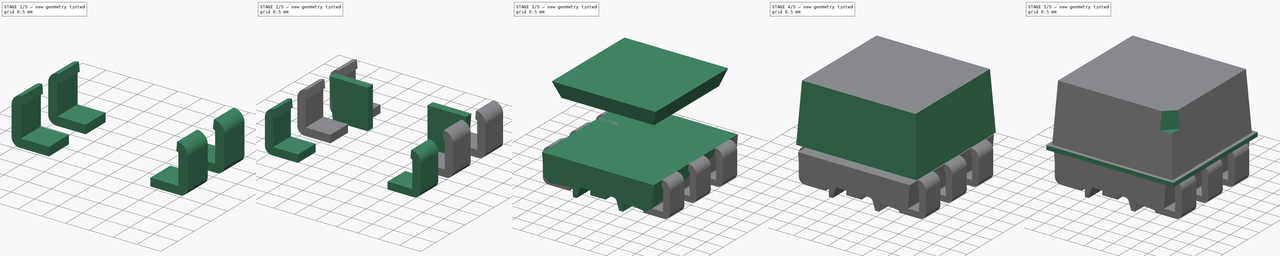
[diagram: build sequence overview — one tinted view per stage of 5, left to right]
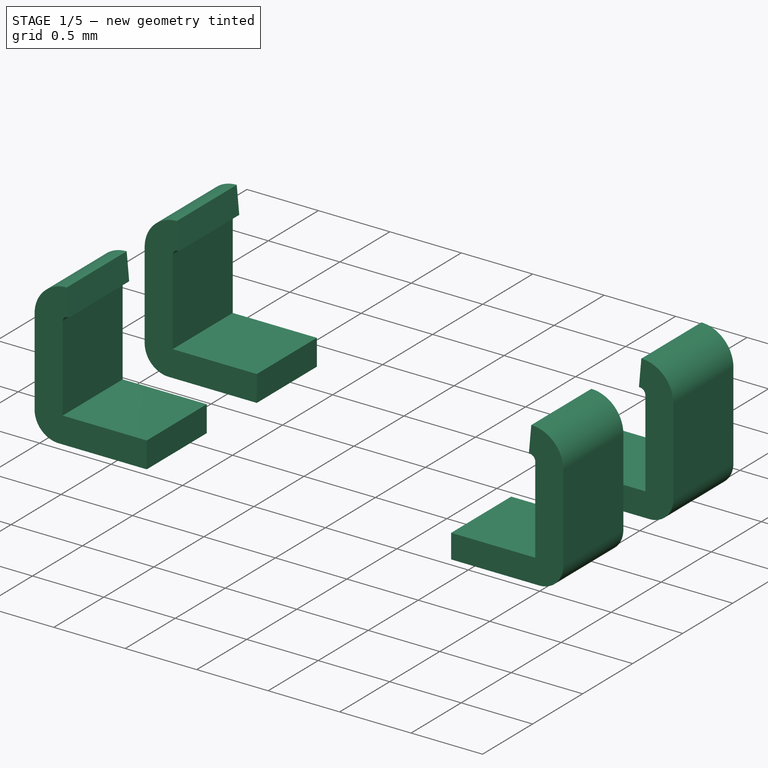
[diagram: stage 1 of 5 — iso view after this stage's code; geometry added in this stage tinted green]
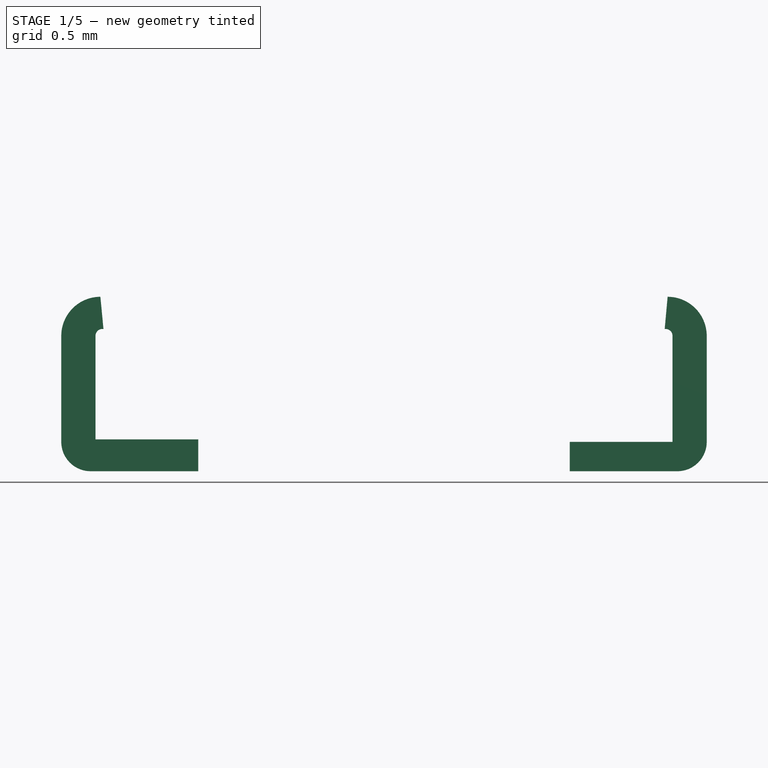
[diagram: stage 1 of 5 — front view after this stage's code; geometry added in this stage tinted green]
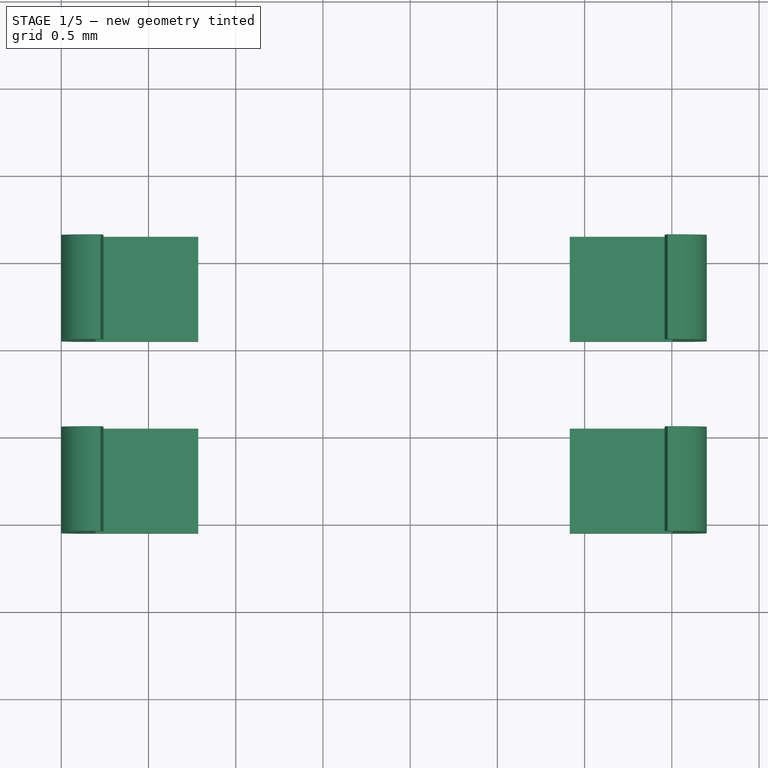
[diagram: stage 1 of 5 — top view after this stage's code; geometry added in this stage tinted green]
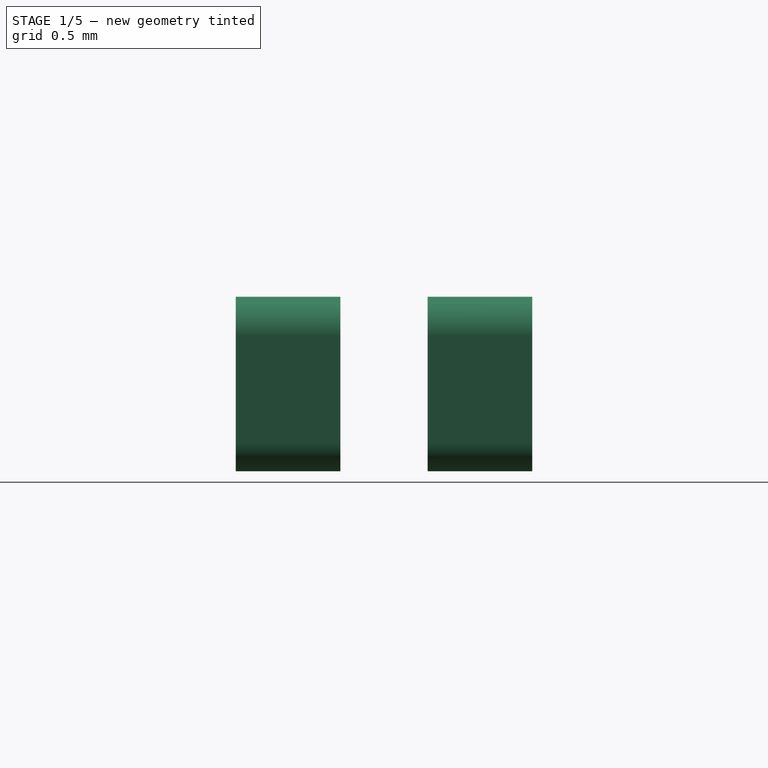
[diagram: stage 1 of 5 — right view after this stage's code; geometry added in this stage tinted green]
FCSTD DOCUMENT  (FreeCAD 0.16R6712 (Git))
Label: LED_RGB3535
License: All rights reserved
LicenseURL: http://en.wikipedia.org/wiki/All_rights_reserved
objects: Sketcher::SketchObject×12, PartDesign::Pad×12, Part::Wedge×3, Part::Cut×2, Part::Fillet×2, Part::Box×1
note: 44 computed .brp shape members not serialized (recipe doc carries the construction recipe); baked Part::Feature solids carry a one-line shape summary decoded from their .brp

FEATURE [Sketcher::SketchObject] Sketch009
  Placement = pos=(0,2.05,0) rot=(1,0,0;1.5708rad)
  sketch-geometry (9):
    g0: LineSegment StartX=0.2242 StartY=1 StartZ=0 EndX=0.241856 EndY=0.815079 EndZ=0
    g1: LineSegment StartX=0.1962 StartY=0.7758 StartZ=0 EndX=0.1962 EndY=0.1826 EndZ=0
    g2: LineSegment StartX=0.1962 StartY=0.1826 StartZ=0 EndX=0.7849 EndY=0.1826 EndZ=0
    g3: LineSegment StartX=0.7849 StartY=0.1826 StartZ=0 EndX=0.7849 EndY=0 EndZ=0
    g4: LineSegment StartX=0.7849 StartY=0 StartZ=0 EndX=0.1682 EndY=0 EndZ=0
    g5: LineSegment StartX=0 StartY=0.1682 StartZ=0 EndX=0 EndY=0.7758 EndZ=0
    g6: ArcOfCircle CenterX=0.2242 CenterY=0.7758 CenterZ=0 NormalX=0 NormalY=0 NormalZ=1 Radius=0.2242 StartAngle=1.5708 EndAngle=3.14159
    g7: ArcOfCircle CenterX=0.1682 CenterY=0.1682 CenterZ=0 NormalX=0 NormalY=0 NormalZ=1 Radius=0.1682 StartAngle=3.14159 EndAngle=4.71239
    g8: ArcOfCircle CenterX=0.235924 CenterY=0.7758 CenterZ=0 NormalX=0 NormalY=0 NormalZ=1 Radius=0.0397244 StartAngle=1.42092 EndAngle=3.14159
  constraints (30):
    c: Coincident(g5,g7)
    c: Coincident(g4,g7)
    c: DistanceY(g4) = 0
    c: Horizontal(g4)
    c: Horizontal(g2)
    c: Vertical(g3)
    c: Vertical(g1)
    c: Vertical(g5)
    c: DistanceX(g0) = 0.2242
    c: Coincident(g0,g6)
    c: Coincident(g5,g6)
    c: DistanceY(g0) = 1
    c: DistanceX(g5) = 0
    c: DistanceX(g4) = 0.1682
    c: DistanceY(g5) = 0.1682
    c: DistanceY(g7) = 0.1682
    c: DistanceX(g3) = 0.7849
    c: Coincident(g3,g4)
    c: Coincident(g2,g3)
    c: Coincident(g1,g2)
    c: DistanceY(g2) = 0.1826
    c: DistanceX(g1) = 0.1962
    c: DistanceY(g5) = 0.7758
    c: DistanceY(g6) = 0.7758
    c: Coincident(g1,g8)
    c: Coincident(g0,g8)
    c: DistanceY(g1) = 0.7758
    c: DistanceX(g0) = 0.241856
    c: DistanceY(g0) = 0.815079
    c: DistanceY(g8) = 0.7758
FEATURE [PartDesign::Pad] Pad009
  Length = 0.6
  Length2 = 100
  Placement = pos=(0,2.05,0) rot=(1,0,0;1.5708rad)
  Sketch = -> Sketch009
  Type = 0
FEATURE [Sketcher::SketchObject] Sketch010
  Placement = pos=(0,3.15,0) rot=(1,0,0;1.5708rad)
  sketch-geometry (9):
    g0: LineSegment StartX=0.2242 StartY=1 StartZ=0 EndX=0.241856 EndY=0.815079 EndZ=0
    g1: LineSegment StartX=0.1962 StartY=0.7758 StartZ=0 EndX=0.1962 EndY=0.1826 EndZ=0
    g2: LineSegment StartX=0.1962 StartY=0.1826 StartZ=0 EndX=0.7849 EndY=0.1826 EndZ=0
    g3: LineSegment StartX=0.7849 StartY=0.1826 StartZ=0 EndX=0.7849 EndY=0 EndZ=0
    g4: LineSegment StartX=0.7849 StartY=0 StartZ=0 EndX=0.1682 EndY=0 EndZ=0
    g5: LineSegment StartX=0 StartY=0.1682 StartZ=0 EndX=0 EndY=0.7758 EndZ=0
    g6: ArcOfCircle CenterX=0.2242 CenterY=0.7758 CenterZ=0 NormalX=0 NormalY=0 NormalZ=1 Radius=0.2242 StartAngle=1.5708 EndAngle=3.14159
    g7: ArcOfCircle CenterX=0.1682 CenterY=0.1682 CenterZ=0 NormalX=0 NormalY=0 NormalZ=1 Radius=0.1682 StartAngle=3.14159 EndAngle=4.71239
    g8: ArcOfCircle CenterX=0.235924 CenterY=0.7758 CenterZ=0 NormalX=0 NormalY=0 NormalZ=1 Radius=0.0397244 StartAngle=1.42092 EndAngle=3.14159
  constraints (30):
    c: Coincident(g5,g7)
    c: Coincident(g4,g7)
    c: DistanceY(g4) = 0
    c: Horizontal(g4)
    c: Horizontal(g2)
    c: Vertical(g3)
    c: Vertical(g1)
    c: Vertical(g5)
    c: DistanceX(g0) = 0.2242
    c: Coincident(g0,g6)
    c: Coincident(g5,g6)
    c: DistanceY(g0) = 1
    c: DistanceX(g5) = 0
    c: DistanceX(g4) = 0.1682
    c: DistanceY(g5) = 0.1682
    c: DistanceY(g7) = 0.1682
    c: DistanceX(g3) = 0.7849
    c: Coincident(g3,g4)
    c: Coincident(g2,g3)
    c: Coincident(g1,g2)
    c: DistanceY(g2) = 0.1826
    c: DistanceX(g1) = 0.1962
    c: DistanceY(g5) = 0.7758
    c: DistanceY(g6) = 0.7758
    c: Coincident(g1,g8)
    c: Coincident(g0,g8)
    c: DistanceY(g1) = 0.7758
    c: DistanceX(g0) = 0.241856
    c: DistanceY(g0) = 0.815079
    c: DistanceY(g8) = 0.7758
FEATURE [PartDesign::Pad] Pad010
  Length = 0.6
  Length2 = 100
  Placement = pos=(0,3.15,0) rot=(1,0,0;1.5708rad)
  Sketch = -> Sketch010
  Type = 0
FEATURE [Sketcher::SketchObject] Sketch011
  Placement = pos=(0,2.05,0) rot=(1,0,0;1.5708rad)
  sketch-geometry (9):
    g0: LineSegment StartX=2.9151 StartY=0 StartZ=0 EndX=3.5318 EndY=0 EndZ=0
    g1: LineSegment StartX=3.7 StartY=0.1682 StartZ=0 EndX=3.7 EndY=0.7758 EndZ=0
    g2: LineSegment StartX=3.4758 StartY=1 StartZ=0 EndX=3.45899 EndY=0.815079 EndZ=0
    g3: LineSegment StartX=3.5038 StartY=0.7758 StartZ=0 EndX=3.5038 EndY=0.1682 EndZ=0
    g4: LineSegment StartX=3.5038 StartY=0.1682 StartZ=0 EndX=2.9151 EndY=0.1682 EndZ=0
    g5: LineSegment StartX=2.9151 StartY=0.1682 StartZ=0 EndX=2.9151 EndY=0 EndZ=0
    g6: ArcOfCircle CenterX=3.5318 CenterY=0.1682 CenterZ=0 NormalX=0 NormalY=0 NormalZ=1 Radius=0.1682 StartAngle=4.71239 EndAngle=6.28319
    g7: ArcOfCircle CenterX=3.46418 CenterY=0.7758 CenterZ=0 NormalX=0 NormalY=0 NormalZ=1 Radius=0.0396204 StartAngle=0 EndAngle=1.70216
    g8: ArcOfCircle CenterX=3.4758 CenterY=0.7758 CenterZ=0 NormalX=0 NormalY=0 NormalZ=1 Radius=0.2242 StartAngle=0 EndAngle=1.5708
  constraints (30):
    c: Coincident(g4,g5)
    c: Coincident(g0,g5)
    c: Vertical(g5)
    c: Coincident(g3,g4)
    c: Horizontal(g4)
    c: Horizontal(g0)
    c: Vertical(g3)
    c: Vertical(g1)
    c: DistanceX(g1) = 3.7
    c: DistanceY(g4) = 0.1682
    c: DistanceY(g0) = 0
    c: Coincident(g1,g6)
    c: DistanceY(g1) = 0.1682
    c: Coincident(g0,g6)
    c: DistanceX(g0) = 3.5318
    c: DistanceY(g6) = 0.1682
    c: DistanceX(g0) = 2.9151
    c: DistanceX(g3) = 3.5038
    c: Coincident(g3,g7)
    c: DistanceY(g3) = 0.7758
    c: Coincident(g1,g8)
    c: DistanceY(g1) = 0.7758
    c: DistanceX(g2) = 3.4758
    c: DistanceY(g2) = 1
    c: Coincident(g2,g8)
    c: DistanceY(g8) = 0.7758
    c: Coincident(g2,g7)
    c: DistanceY(g7) = 0.7758
    c: DistanceY(g2) = 0.815079
    c: DistanceX(g2) = 3.45899
FEATURE [PartDesign::Pad] Pad011
  Length = 0.6
  Length2 = 100
  Placement = pos=(0,2.05,0) rot=(1,0,0;1.5708rad)
  Sketch = -> Sketch011
  Type = 0
FEATURE [Sketcher::SketchObject] Sketch012
  Placement = pos=(0,3.15,0) rot=(1,0,0;1.5708rad)
  sketch-geometry (9):
    g0: LineSegment StartX=2.9151 StartY=0 StartZ=0 EndX=3.5318 EndY=0 EndZ=0
    g1: LineSegment StartX=3.7 StartY=0.1682 StartZ=0 EndX=3.7 EndY=0.7758 EndZ=0
    g2: LineSegment StartX=3.4758 StartY=1 StartZ=0 EndX=3.45899 EndY=0.815079 EndZ=0
    g3: LineSegment StartX=3.5038 StartY=0.7758 StartZ=0 EndX=3.5038 EndY=0.1682 EndZ=0
    g4: LineSegment StartX=3.5038 StartY=0.1682 StartZ=0 EndX=2.9151 EndY=0.1682 EndZ=0
    g5: LineSegment StartX=2.9151 StartY=0.1682 StartZ=0 EndX=2.9151 EndY=0 EndZ=0
    g6: ArcOfCircle CenterX=3.5318 CenterY=0.1682 CenterZ=0 NormalX=0 NormalY=0 NormalZ=1 Radius=0.1682 StartAngle=4.71239 EndAngle=6.28319
    g7: ArcOfCircle CenterX=3.46418 CenterY=0.7758 CenterZ=0 NormalX=0 NormalY=0 NormalZ=1 Radius=0.0396204 StartAngle=0 EndAngle=1.70216
    g8: ArcOfCircle CenterX=3.4758 CenterY=0.7758 CenterZ=0 NormalX=0 NormalY=0 NormalZ=1 Radius=0.2242 StartAngle=0 EndAngle=1.5708
  constraints (30):
    c: Coincident(g4,g5)
    c: Coincident(g0,g5)
    c: Vertical(g5)
    c: Coincident(g3,g4)
    c: Horizontal(g4)
    c: Horizontal(g0)
    c: Vertical(g3)
    c: Vertical(g1)
    c: DistanceX(g1) = 3.7
    c: DistanceY(g4) = 0.1682
    c: DistanceY(g0) = 0
    c: Coincident(g1,g6)
    c: DistanceY(g1) = 0.1682
    c: Coincident(g0,g6)
    c: DistanceX(g0) = 3.5318
    c: DistanceY(g6) = 0.1682
    c: DistanceX(g0) = 2.9151
    c: DistanceX(g3) = 3.5038
    c: Coincident(g3,g7)
    c: DistanceY(g3) = 0.7758
    c: Coincident(g1,g8)
    c: DistanceY(g1) = 0.7758
    c: DistanceX(g2) = 3.4758
    c: DistanceY(g2) = 1
    c: Coincident(g2,g8)
    c: DistanceY(g8) = 0.7758
    c: Coincident(g2,g7)
    c: DistanceY(g7) = 0.7758
    c: DistanceY(g2) = 0.815079
    c: DistanceX(g2) = 3.45899
FEATURE [PartDesign::Pad] Pad012
  Length = 0.6
  Length2 = 100
  Placement = pos=(0,3.15,0) rot=(1,0,0;1.5708rad)
  Sketch = -> Sketch012
  Type = 0
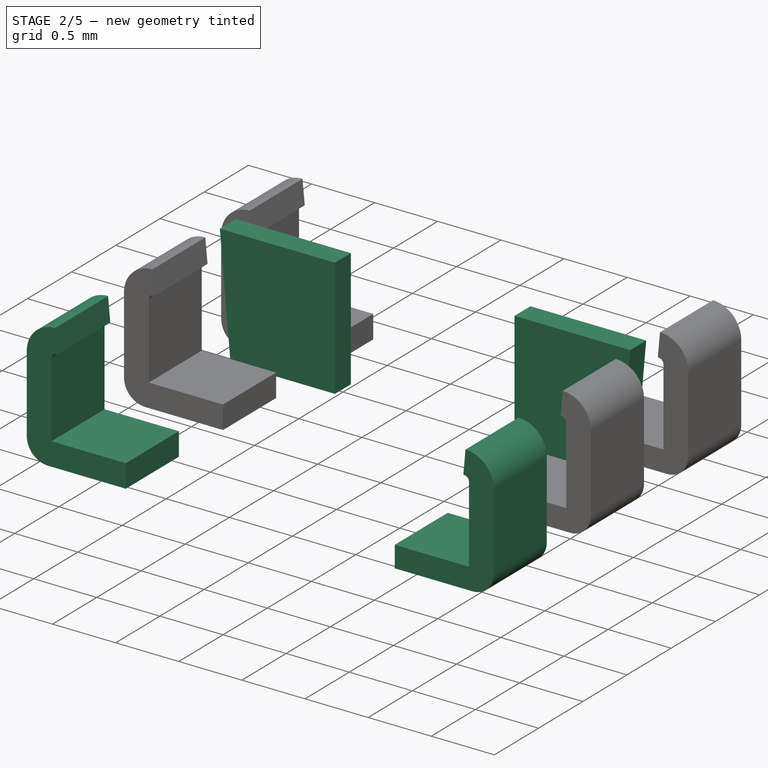
[diagram: stage 2 of 5 — iso view after this stage's code; geometry added in this stage tinted green]
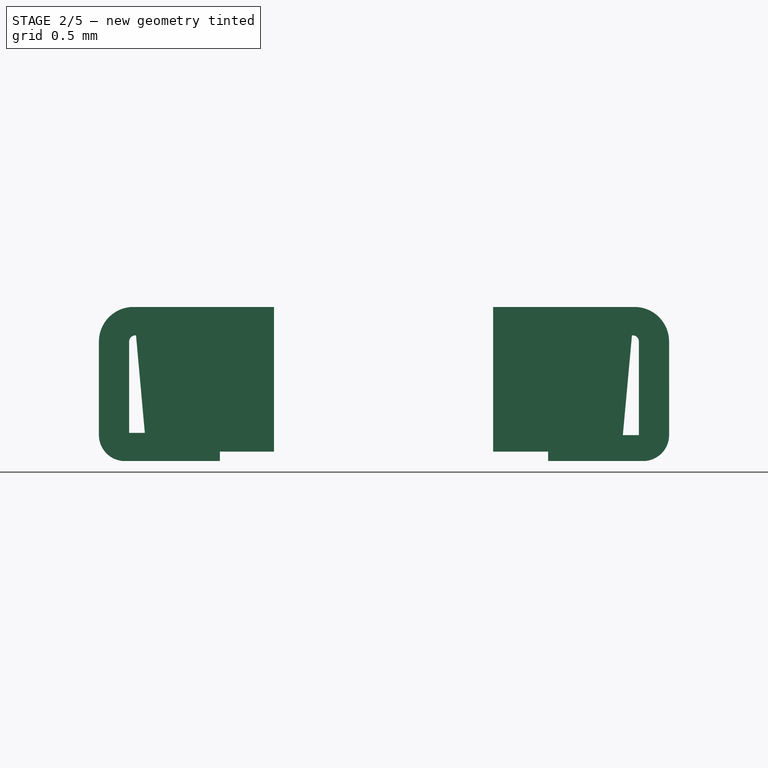
[diagram: stage 2 of 5 — front view after this stage's code; geometry added in this stage tinted green]
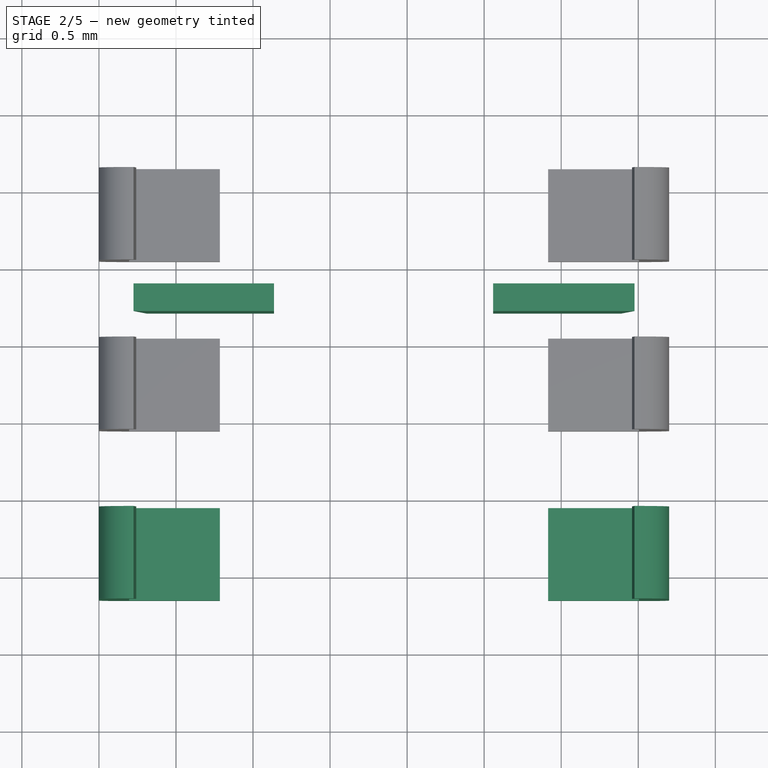
[diagram: stage 2 of 5 — top view after this stage's code; geometry added in this stage tinted green]
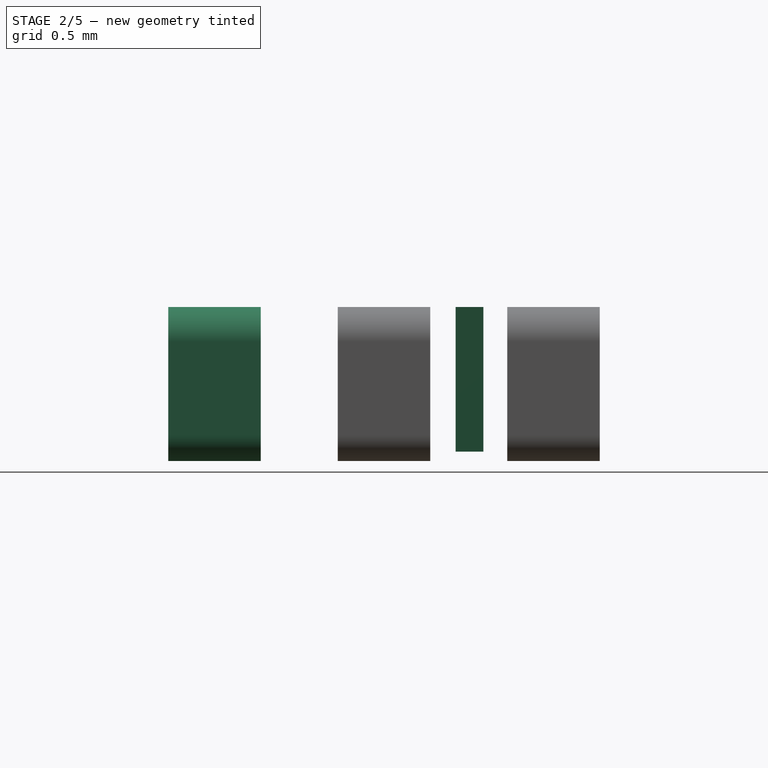
[diagram: stage 2 of 5 — right view after this stage's code; geometry added in this stage tinted green]
FEATURE [Sketcher::SketchObject] Sketch005
  Placement = pos=(0,2.3947,0) rot=(1,0,0;1.5708rad)
  sketch-geometry (4):
    g0: LineSegment StartX=0.2242 StartY=1 StartZ=0 EndX=0.308853 EndY=0.061 EndZ=0
    g1: LineSegment StartX=0.308853 StartY=0.061 StartZ=0 EndX=1.13628 EndY=0.061 EndZ=0
    g2: LineSegment StartX=1.13628 StartY=0.061 StartZ=0 EndX=1.13628 EndY=1 EndZ=0
    g3: LineSegment StartX=1.13628 StartY=1 StartZ=0 EndX=0.2242 EndY=1 EndZ=0
  constraints (12):
    c: Coincident(g0,g3)
    c: Coincident(g2,g3)
    c: Coincident(g0,g1)
    c: Coincident(g1,g2)
    c: Horizontal(g1)
    c: Horizontal(g3)
    c: Vertical(g2)
    c: DistanceY(g0) = 1
    c: DistanceY(g1) = 0.061
    c: DistanceX(g0) = 0.2242
    c: DistanceX(g0) = 0.308853
    c: DistanceX(g1) = 1.13628
FEATURE [PartDesign::Pad] Pad005
  Length = 0.18
  Length2 = 100
  Placement = pos=(0,2.3947,0) rot=(1,0,0;1.5708rad)
  Sketch = -> Sketch005
  Type = 0
FEATURE [Sketcher::SketchObject] Sketch006
  Placement = pos=(0,2.3947,0) rot=(1,0,0;1.5708rad)
  sketch-geometry (4):
    g0: LineSegment StartX=2.5584 StartY=0.061 StartZ=0 EndX=3.39019 EndY=0.061 EndZ=0
    g1: LineSegment StartX=3.39019 StartY=0.061 StartZ=0 EndX=3.4758 EndY=1 EndZ=0
    g2: LineSegment StartX=3.4758 StartY=1 StartZ=0 EndX=2.5584 EndY=1 EndZ=0
    g3: LineSegment StartX=2.5584 StartY=1 StartZ=0 EndX=2.5584 EndY=0.061 EndZ=0
  constraints (12):
    c: Coincident(g0,g3)
    c: Coincident(g0,g1)
    c: Coincident(g1,g2)
    c: Coincident(g2,g3)
    c: Horizontal(g2)
    c: Horizontal(g0)
    c: Vertical(g3)
    c: DistanceY(g0) = 0.061
    c: DistanceX(g1) = 3.4758
    c: DistanceX(g0) = 2.5584
    c: DistanceY(g2) = 1
    c: DistanceX(g0) = 3.39019
FEATURE [PartDesign::Pad] Pad006
  Length = 0.18
  Length2 = 100
  Placement = pos=(0,2.3947,0) rot=(1,0,0;1.5708rad)
  Sketch = -> Sketch006
  Type = 0
FEATURE [Sketcher::SketchObject] Sketch007
  Placement = pos=(0,0.95,0) rot=(-1,0,0;4.71239rad)
  sketch-geometry (9):
    g0: LineSegment StartX=0.2242 StartY=1 StartZ=0 EndX=0.241856 EndY=0.815079 EndZ=0
    g1: LineSegment StartX=0.1962 StartY=0.7758 StartZ=0 EndX=0.1962 EndY=0.1826 EndZ=0
    g2: LineSegment StartX=0.1962 StartY=0.1826 StartZ=0 EndX=0.7849 EndY=0.1826 EndZ=0
    g3: LineSegment StartX=0.7849 StartY=0.1826 StartZ=0 EndX=0.7849 EndY=0 EndZ=0
    g4: LineSegment StartX=0.7849 StartY=0 StartZ=0 EndX=0.1682 EndY=0 EndZ=0
    g5: LineSegment StartX=0 StartY=0.1682 StartZ=0 EndX=0 EndY=0.7758 EndZ=0
    g6: ArcOfCircle CenterX=0.2242 CenterY=0.7758 CenterZ=0 NormalX=0 NormalY=0 NormalZ=1 Radius=0.2242 StartAngle=1.5708 EndAngle=3.14159
    g7: ArcOfCircle CenterX=0.1682 CenterY=0.1682 CenterZ=0 NormalX=0 NormalY=0 NormalZ=1 Radius=0.1682 StartAngle=3.14159 EndAngle=4.71239
    g8: ArcOfCircle CenterX=0.235924 CenterY=0.7758 CenterZ=0 NormalX=0 NormalY=0 NormalZ=1 Radius=0.0397244 StartAngle=1.42092 EndAngle=3.14159
  constraints (30):
    c: Coincident(g5,g7)
    c: Coincident(g4,g7)
    c: DistanceY(g4) = 0
    c: Horizontal(g4)
    c: Horizontal(g2)
    c: Vertical(g3)
    c: Vertical(g1)
    c: Vertical(g5)
    c: DistanceX(g0) = 0.2242
    c: Coincident(g0,g6)
    c: Coincident(g5,g6)
    c: DistanceY(g0) = 1
    c: DistanceX(g5) = 0
    c: DistanceX(g4) = 0.1682
    c: DistanceY(g5) = 0.1682
    c: DistanceY(g7) = 0.1682
    c: DistanceX(g3) = 0.7849
    c: Coincident(g3,g4)
    c: Coincident(g2,g3)
    c: Coincident(g1,g2)
    c: DistanceY(g2) = 0.1826
    c: DistanceX(g1) = 0.1962
    c: DistanceY(g5) = 0.7758
    c: DistanceY(g6) = 0.7758
    c: Coincident(g1,g8)
    c: Coincident(g0,g8)
    c: DistanceY(g1) = 0.7758
    c: DistanceX(g0) = 0.241856
    c: DistanceY(g0) = 0.815079
    c: DistanceY(g8) = 0.7758
FEATURE [Sketcher::SketchObject] Sketch008
  Placement = pos=(0,0.95,0) rot=(1,0,0;1.5708rad)
  sketch-geometry (9):
    g0: LineSegment StartX=2.9151 StartY=0 StartZ=0 EndX=3.5318 EndY=0 EndZ=0
    g1: LineSegment StartX=3.7 StartY=0.1682 StartZ=0 EndX=3.7 EndY=0.7758 EndZ=0
    g2: LineSegment StartX=3.4758 StartY=1 StartZ=0 EndX=3.45899 EndY=0.815079 EndZ=0
    g3: LineSegment StartX=3.5038 StartY=0.7758 StartZ=0 EndX=3.5038 EndY=0.1682 EndZ=0
    g4: LineSegment StartX=3.5038 StartY=0.1682 StartZ=0 EndX=2.9151 EndY=0.1682 EndZ=0
    g5: LineSegment StartX=2.9151 StartY=0.1682 StartZ=0 EndX=2.9151 EndY=0 EndZ=0
    g6: ArcOfCircle CenterX=3.5318 CenterY=0.1682 CenterZ=0 NormalX=0 NormalY=0 NormalZ=1 Radius=0.1682 StartAngle=4.71239 EndAngle=6.28319
    g7: ArcOfCircle CenterX=3.46418 CenterY=0.7758 CenterZ=0 NormalX=0 NormalY=0 NormalZ=1 Radius=0.0396204 StartAngle=0 EndAngle=1.70216
    g8: ArcOfCircle CenterX=3.4758 CenterY=0.7758 CenterZ=0 NormalX=0 NormalY=0 NormalZ=1 Radius=0.2242 StartAngle=0 EndAngle=1.5708
  constraints (30):
    c: Coincident(g4,g5)
    c: Coincident(g0,g5)
    c: Vertical(g5)
    c: Coincident(g3,g4)
    c: Horizontal(g4)
    c: Horizontal(g0)
    c: Vertical(g3)
    c: Vertical(g1)
    c: DistanceX(g1) = 3.7
    c: DistanceY(g4) = 0.1682
    c: DistanceY(g0) = 0
    c: Coincident(g1,g6)
    c: DistanceY(g1) = 0.1682
    c: Coincident(g0,g6)
    c: DistanceX(g0) = 3.5318
    c: DistanceY(g6) = 0.1682
    c: DistanceX(g0) = 2.9151
    c: DistanceX(g3) = 3.5038
    c: Coincident(g3,g7)
    c: DistanceY(g3) = 0.7758
    c: Coincident(g1,g8)
    c: DistanceY(g1) = 0.7758
    c: DistanceX(g2) = 3.4758
    c: DistanceY(g2) = 1
    c: Coincident(g2,g8)
    c: DistanceY(g8) = 0.7758
    c: Coincident(g2,g7)
    c: DistanceY(g7) = 0.7758
    c: DistanceY(g2) = 0.815079
    c: DistanceX(g2) = 3.45899
FEATURE [PartDesign::Pad] Pad007
  Length = 0.6
  Length2 = 100
  Placement = pos=(0,0.95,0) rot=(-1,0,0;4.71239rad)
  Sketch = -> Sketch007
  Type = 0
FEATURE [PartDesign::Pad] Pad008
  Length = 0.6
  Length2 = 100
  Placement = pos=(0,0.95,0) rot=(1,0,0;1.5708rad)
  Sketch = -> Sketch008
  Type = 0
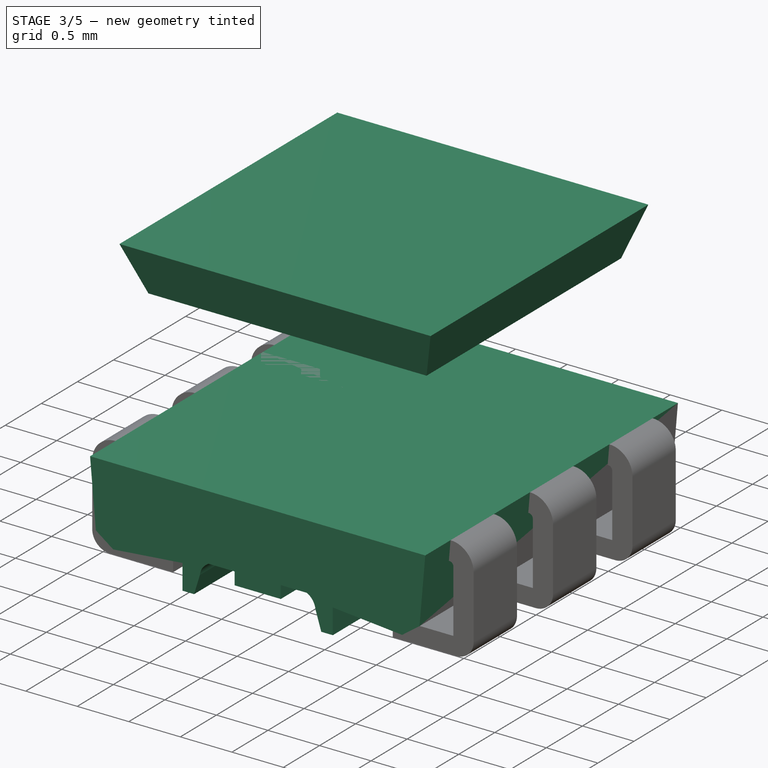
[diagram: stage 3 of 5 — iso view after this stage's code; geometry added in this stage tinted green]
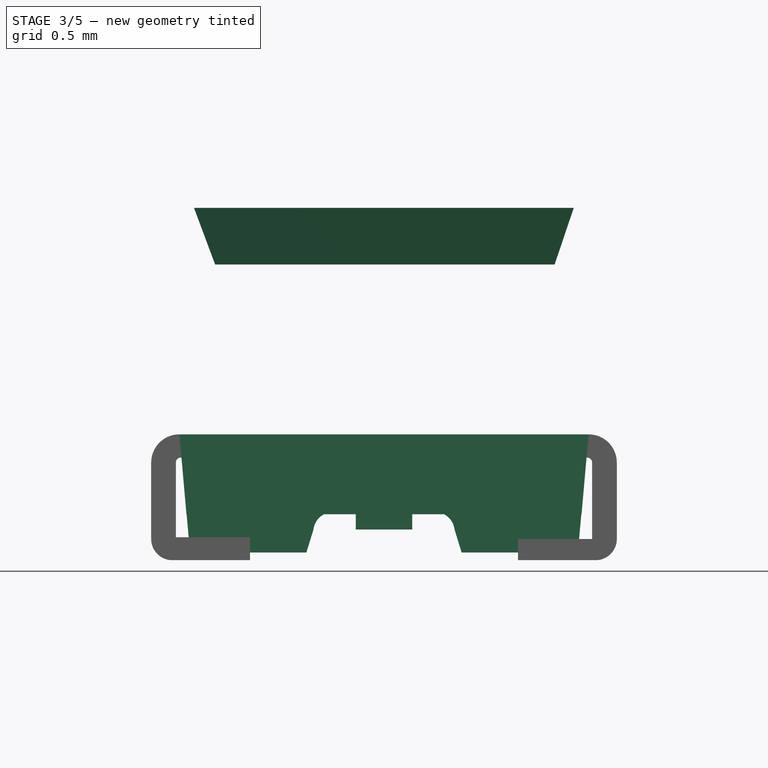
[diagram: stage 3 of 5 — front view after this stage's code; geometry added in this stage tinted green]
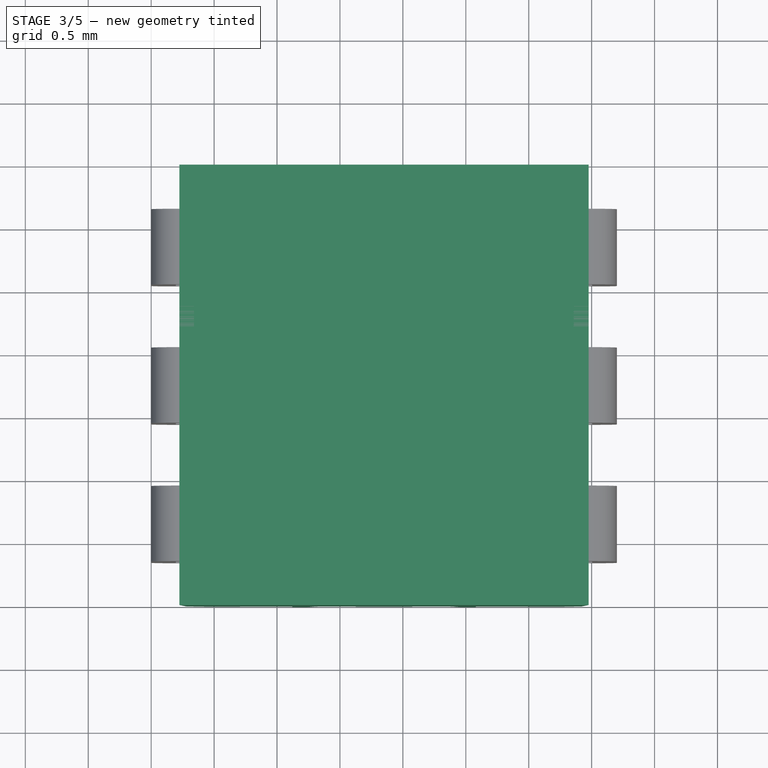
[diagram: stage 3 of 5 — top view after this stage's code; geometry added in this stage tinted green]
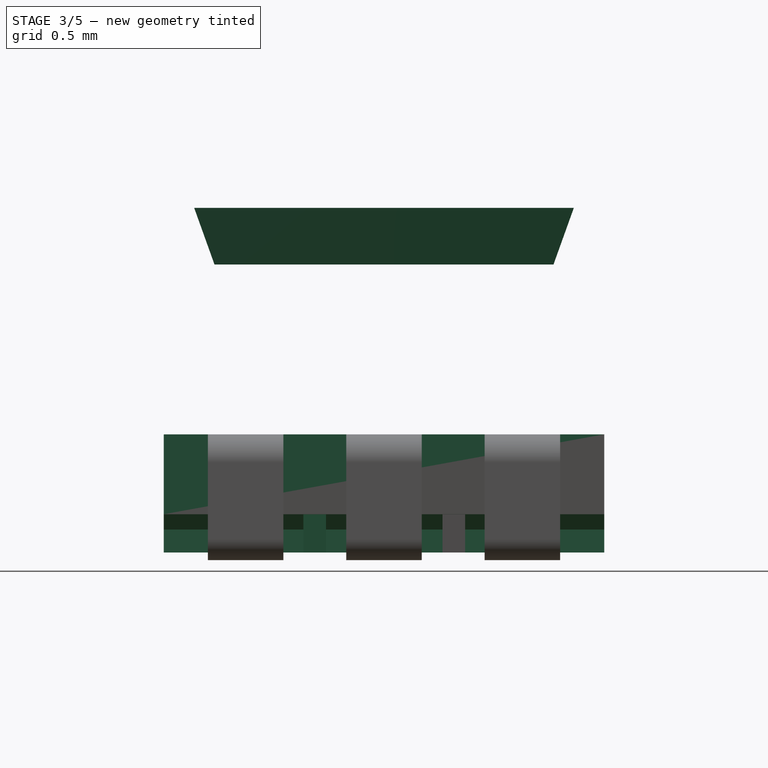
[diagram: stage 3 of 5 — right view after this stage's code; geometry added in this stage tinted green]
FEATURE [Part::Wedge] Wedge003
  Placement = pos=(0,3.5,2.35) rot=(1,0,0;1.5708rad)
  X2max = 3.358
  X2min = 0.34
  Xmax = 3.206
  Xmin = 0.508
  Ymax = 0.45
  Ymin = 0
  Z2max = 3.2586
  Z2min = 0.2414
  Zmax = 3.097
  Zmin = 0.403
FEATURE [Sketcher::SketchObject] Sketch
  Placement = pos=(0,3.5,0) rot=(-1,0,0;4.71239rad)
  sketch-geometry (20):
    g0: LineSegment StartX=0.2242 StartY=1 StartZ=0 EndX=3.4758 EndY=1 EndZ=0
    g1: LineSegment StartX=0.2242 StartY=1 StartZ=0 EndX=0.2803 EndY=0.3652 EndZ=0
    g2: LineSegment StartX=0.2803 StartY=0.3652 StartZ=0 EndX=0.4485 EndY=0.2435 EndZ=0
    g3: LineSegment StartX=0.4485 StartY=0.2435 StartZ=0 EndX=1.1212 EndY=0.3043 EndZ=0
    g4: LineSegment StartX=1.1212 StartY=0.3043 StartZ=0 EndX=1.1212 EndY=0.061 EndZ=0
    g5: LineSegment StartX=1.1212 StartY=0.061 StartZ=0 EndX=1.2333 EndY=0.061 EndZ=0
    g6: LineSegment StartX=1.2333 StartY=0.061 StartZ=0 EndX=1.2894 EndY=0.2435 EndZ=0
    g7: LineSegment StartX=1.3735 StartY=0.3652 StartZ=0 EndX=1.6258 EndY=0.3652 EndZ=0
    g8: LineSegment StartX=1.6258 StartY=0.3652 StartZ=0 EndX=1.6258 EndY=0.2435 EndZ=0
    g9: LineSegment StartX=1.6258 StartY=0.2435 StartZ=0 EndX=2.0742 EndY=0.2435 EndZ=0
    g10: LineSegment StartX=2.0742 StartY=0.2435 StartZ=0 EndX=2.0742 EndY=0.3652 EndZ=0
    g11: LineSegment StartX=2.0742 StartY=0.3652 StartZ=0 EndX=2.3265 EndY=0.3652 EndZ=0
    g12: LineSegment StartX=2.4106 StartY=0.2435 StartZ=0 EndX=2.4667 EndY=0.061 EndZ=0
    g13: LineSegment StartX=2.4667 StartY=0.061 StartZ=0 EndX=2.5788 EndY=0.061 EndZ=0
    g14: LineSegment StartX=2.5788 StartY=0.061 StartZ=0 EndX=2.5788 EndY=0.3043 EndZ=0
    g15: LineSegment StartX=2.5788 StartY=0.3043 StartZ=0 EndX=3.2515 EndY=0.2435 EndZ=0
    g16: LineSegment StartX=3.2515 StartY=0.2435 StartZ=0 EndX=3.4197 EndY=0.3652 EndZ=0
    g17: LineSegment StartX=3.4197 StartY=0.3652 StartZ=0 EndX=3.4758 EndY=1 EndZ=0
    g18: ArcOfCircle CenterX=1.44657 CenterY=0.224795 CenterZ=0 NormalX=0 NormalY=0 NormalZ=1 Radius=0.158282 StartAngle=2.05067 EndAngle=3.02314
    g19: ArcOfCircle CenterX=2.25343 CenterY=0.224795 CenterZ=0 NormalX=0 NormalY=0 NormalZ=1 Radius=0.158282 StartAngle=0.118452 EndAngle=1.09093
  constraints (62):
    c: Coincident(g0,g1)
    c: Coincident(g6,g18)
    c: Coincident(g7,g18)
    c: Coincident(g11,g19)
    c: Coincident(g12,g19)
    c: Horizontal(g5)
    c: Horizontal(g13)
    c: Horizontal(g9)
    c: Vertical(g8)
    c: Vertical(g10)
    c: Horizontal(g7)
    c: Coincident(g7,g8)
    c: Horizontal(g11)
    c: Coincident(g10,g11)
    c: Coincident(g14,g15)
    c: Coincident(g15,g16)
    c: Coincident(g16,g17)
    c: Coincident(g0,g17)
    c: Horizontal(g0)
    c: Coincident(g1,g2)
    c: Coincident(g2,g3)
    c: Coincident(g3,g4)
    c: Coincident(g4,g5)
    c: Coincident(g5,g6)
    c: Coincident(g12,g13)
    c: Coincident(g13,g14)
    c: DistanceY(g0) = 1
    c: DistanceY(g1) = 0.3652
    c: DistanceY(g16) = 0.3652
    c: DistanceY(g2) = 0.2435
    c: DistanceY(g15) = 0.2435
    c: Vertical(g14)
    c: Vertical(g4)
    c: DistanceY(g4) = 0.061
    c: DistanceY(g13) = 0.061
    c: DistanceY(g3) = 0.3043
    c: DistanceY(g14) = 0.3043
    c: Coincident(g8,g9)
    c: Coincident(g9,g10)
    c: DistanceY(g7) = 0.3652
    c: DistanceY(g10) = 0.3652
    c: DistanceY(g8) = 0.2435
    c: DistanceX(g0) = 0.2242
    c: DistanceX(g0) = 3.4758
    c: DistanceX(g1) = 0.2803
    c: DistanceX(g16) = 3.4197
    c: DistanceX(g2) = 0.4485
    c: DistanceX(g15) = 3.2515
    c: DistanceX(g3) = 1.1212
    c: DistanceX(g14) = 2.5788
    c: DistanceX(g12) = 2.4667
    c: DistanceX(g5) = 1.2333
    c: DistanceX(g8) = 1.6258
    c: DistanceX(g9) = 2.0742
    c: DistanceX(g7) = 1.3735
    c: DistanceX(g11) = 2.3265
    c: DistanceX(g6) = 1.2894
    c: DistanceX(g12) = 2.4106
    c: DistanceY(g6) = 0.2435
    c: DistanceY(g12) = 0.2435
    c: DistanceY(g18) = 0.224795
    c: DistanceY(g19) = 0.224795
FEATURE [PartDesign::Pad] Pad
  Length = 3.5
  Length2 = 100
  Placement = pos=(0,3.5,0) rot=(-1,0,0;4.71239rad)
  Sketch = -> Sketch
  Type = 0
FEATURE [Sketcher::SketchObject] Sketch003
  Placement = pos=(0,1.2894,0) rot=(-1,0,0;4.71239rad)
  sketch-geometry (4):
    g0: LineSegment StartX=0.2242 StartY=1 StartZ=0 EndX=0.308853 EndY=0.061 EndZ=0
    g1: LineSegment StartX=0.308853 StartY=0.061 StartZ=0 EndX=1.13628 EndY=0.061 EndZ=0
    g2: LineSegment StartX=1.13628 StartY=0.061 StartZ=0 EndX=1.13628 EndY=1 EndZ=0
    g3: LineSegment StartX=1.13628 StartY=1 StartZ=0 EndX=0.2242 EndY=1 EndZ=0
  constraints (12):
    c: Coincident(g0,g3)
    c: Coincident(g2,g3)
    c: Coincident(g0,g1)
    c: Coincident(g1,g2)
    c: Horizontal(g1)
    c: Horizontal(g3)
    c: Vertical(g2)
    c: DistanceY(g0) = 1
    c: DistanceY(g1) = 0.061
    c: DistanceX(g0) = 0.2242
    c: DistanceX(g0) = 0.308853
    c: DistanceX(g1) = 1.13628
FEATURE [Sketcher::SketchObject] Sketch004
  Placement = pos=(0,1.2894,0) rot=(-1,0,0;4.71239rad)
  sketch-geometry (4):
    g0: LineSegment StartX=2.5584 StartY=0.061 StartZ=0 EndX=3.39019 EndY=0.061 EndZ=0
    g1: LineSegment StartX=3.39019 StartY=0.061 StartZ=0 EndX=3.4758 EndY=1 EndZ=0
    g2: LineSegment StartX=3.4758 StartY=1 StartZ=0 EndX=2.5584 EndY=1 EndZ=0
    g3: LineSegment StartX=2.5584 StartY=1 StartZ=0 EndX=2.5584 EndY=0.061 EndZ=0
  constraints (12):
    c: Coincident(g0,g3)
    c: Coincident(g0,g1)
    c: Coincident(g1,g2)
    c: Coincident(g2,g3)
    c: Horizontal(g2)
    c: Horizontal(g0)
    c: Vertical(g3)
    c: DistanceY(g0) = 0.061
    c: DistanceX(g1) = 3.4758
    c: DistanceX(g0) = 2.5584
    c: DistanceY(g2) = 1
    c: DistanceX(g0) = 3.39019
FEATURE [PartDesign::Pad] Pad003
  Length = 0.18
  Length2 = 100
  Placement = pos=(0,1.2894,0) rot=(-1,0,0;4.71239rad)
  Sketch = -> Sketch003
  Type = 0
FEATURE [PartDesign::Pad] Pad004
  Length = 0.18
  Length2 = 100
  Placement = pos=(0,1.2894,0) rot=(-1,0,0;4.71239rad)
  Sketch = -> Sketch004
  Type = 0
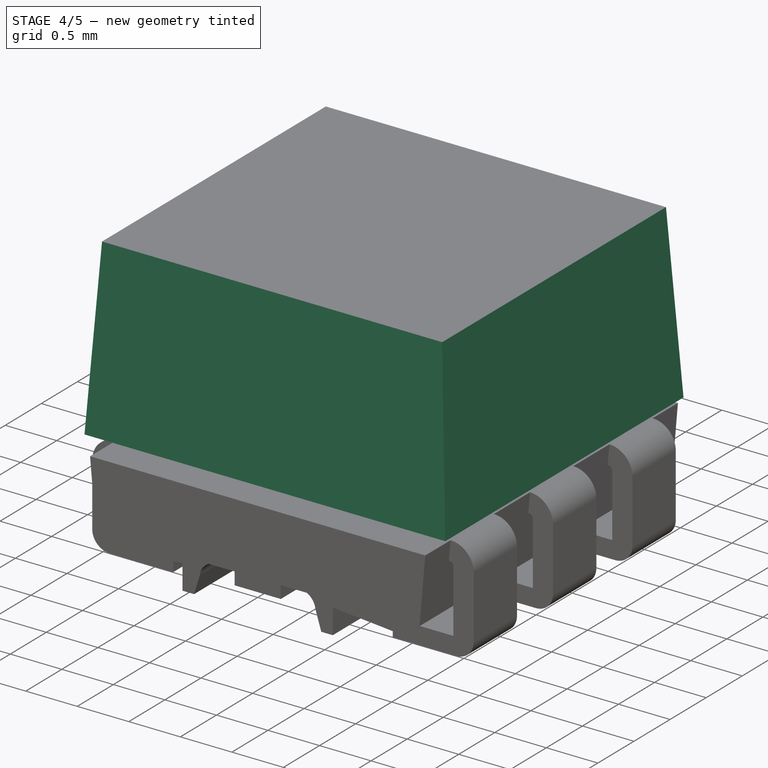
[diagram: stage 4 of 5 — iso view after this stage's code; geometry added in this stage tinted green]
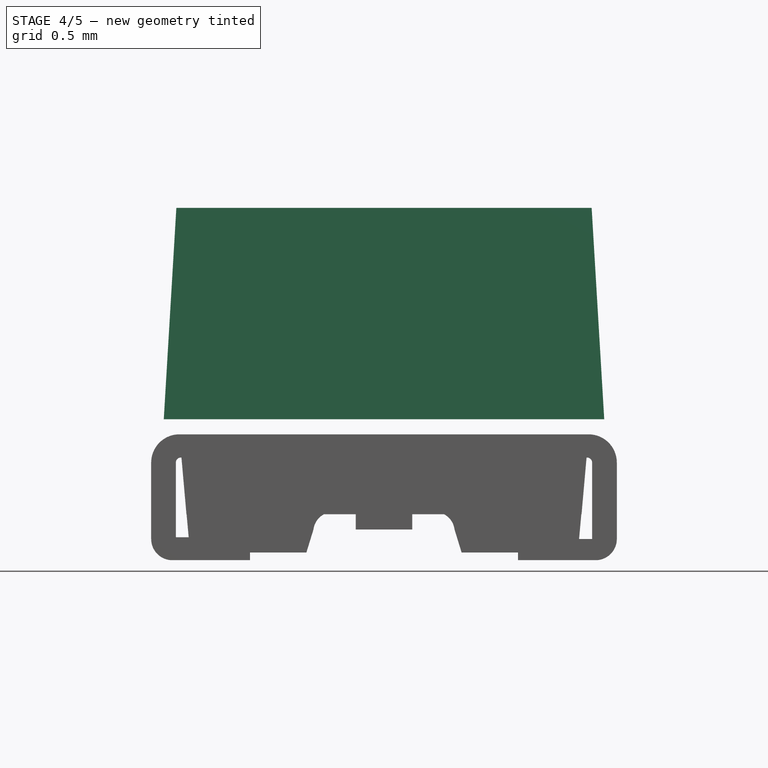
[diagram: stage 4 of 5 — front view after this stage's code; geometry added in this stage tinted green]
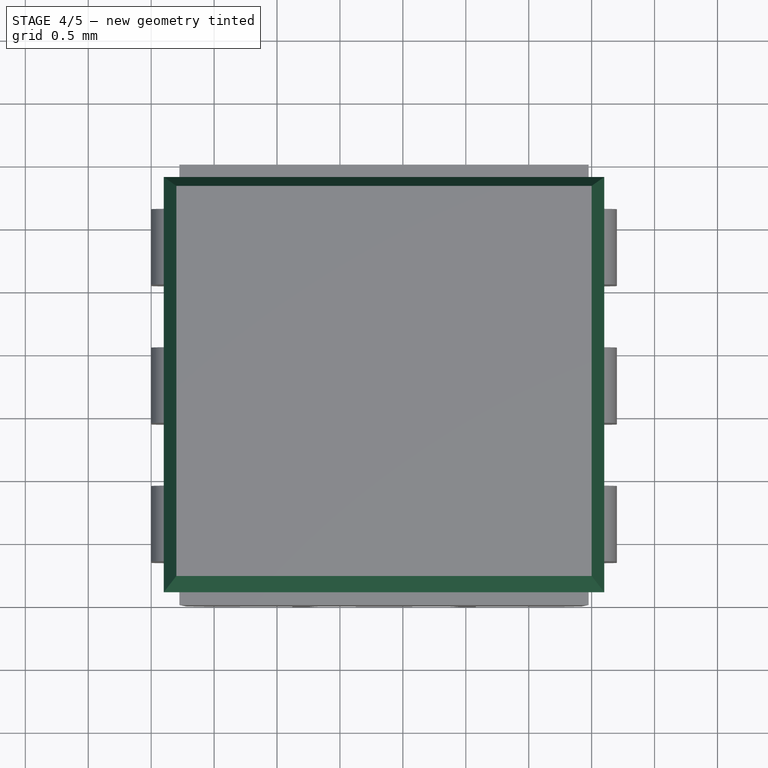
[diagram: stage 4 of 5 — top view after this stage's code; geometry added in this stage tinted green]
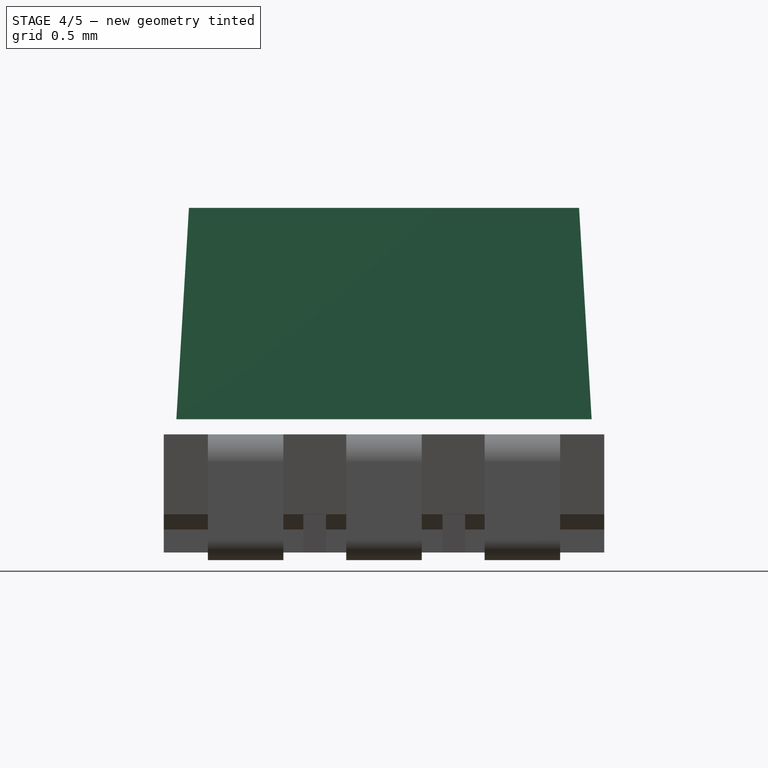
[diagram: stage 4 of 5 — right view after this stage's code; geometry added in this stage tinted green]
FEATURE [Part::Wedge] Wedge001
  Placement = pos=(0,3.4,1.12) rot=(1,0,0;1.5708rad)
  X2max = 3.5
  X2min = 0.2
  Xmax = 3.6
  Xmin = 0.1
  Ymax = 1.68
  Ymin = 0
  Z2max = 3.2
  Z2min = 0.1
  Zmax = 3.3
  Zmin = 0
FEATURE [Part::Wedge] Wedge002
  Placement = pos=(0,3.5,1.12) rot=(1,0,0;1.5708rad)
  X2max = 3.358
  X2min = 0.34
  Xmax = 2.789
  Xmin = 0.967
  Ymax = 1.68
  Ymin = 0
  Z2max = 3.2586
  Z2min = 0.2414
  Zmax = 2.6552
  Zmin = 0.8448
FEATURE [Part::Fillet] Fillet
  Base = -> Wedge002
  Edges = 4 edges r=0.3: [Edge2,Edge4,Edge6,Edge8]
FEATURE [Part::Fillet] Fillet001
  Base = -> Wedge003
  Edges = 4 edges r=0.3: [Edge2,Edge4,Edge6,Edge8]
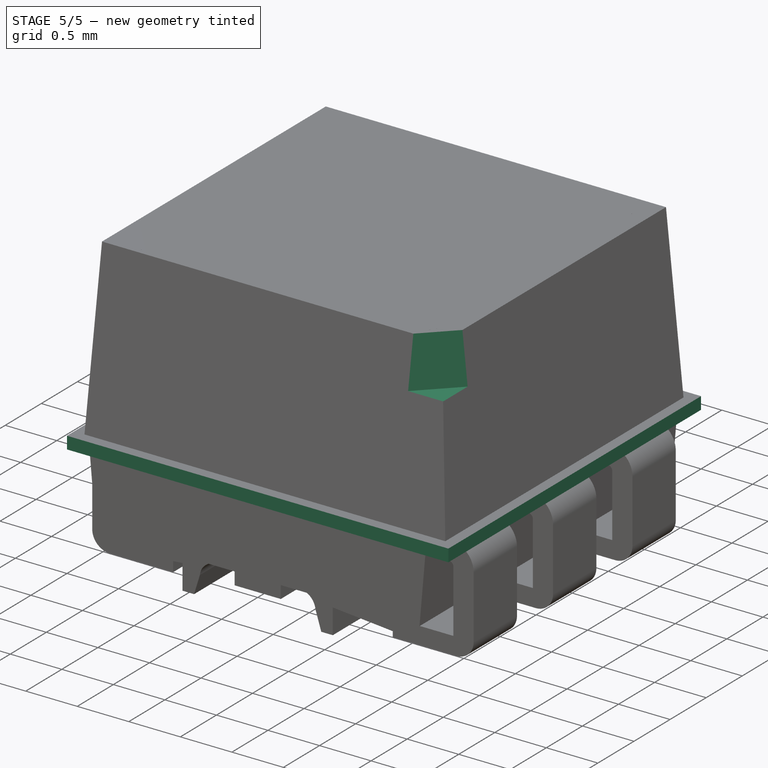
[diagram: stage 5 of 5 — iso view after this stage's code; geometry added in this stage tinted green]
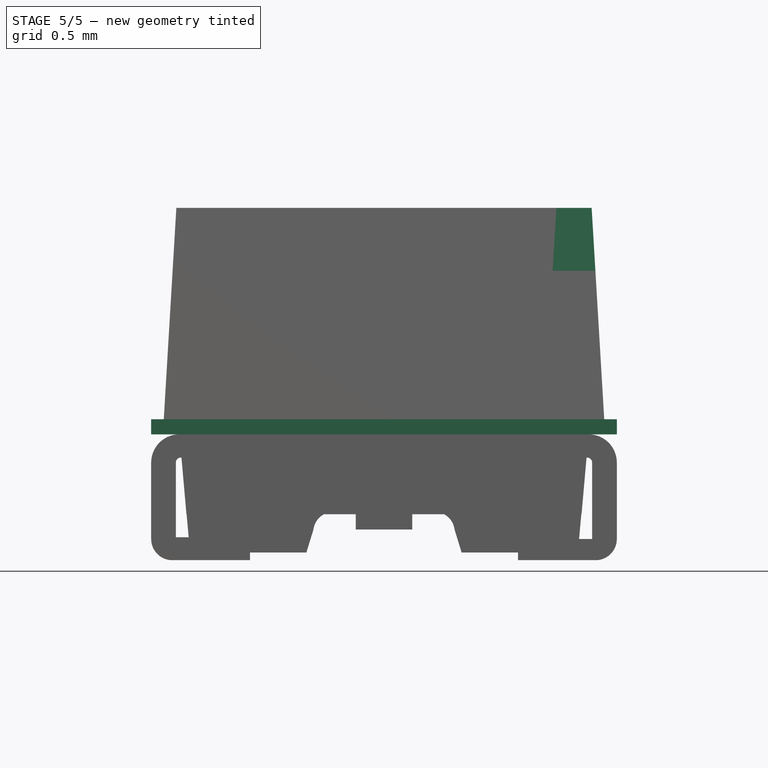
[diagram: stage 5 of 5 — front view after this stage's code; geometry added in this stage tinted green]
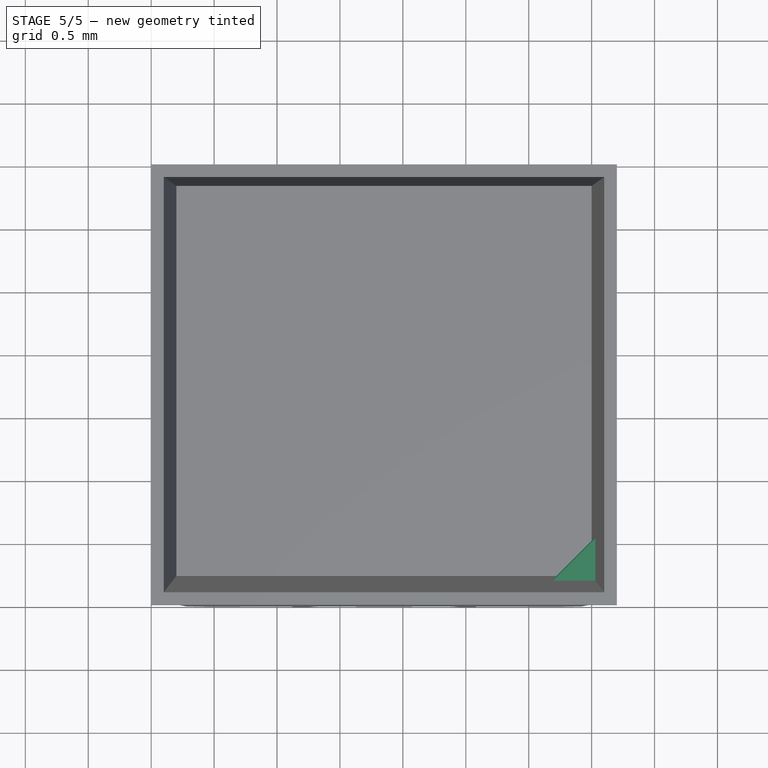
[diagram: stage 5 of 5 — top view after this stage's code; geometry added in this stage tinted green]
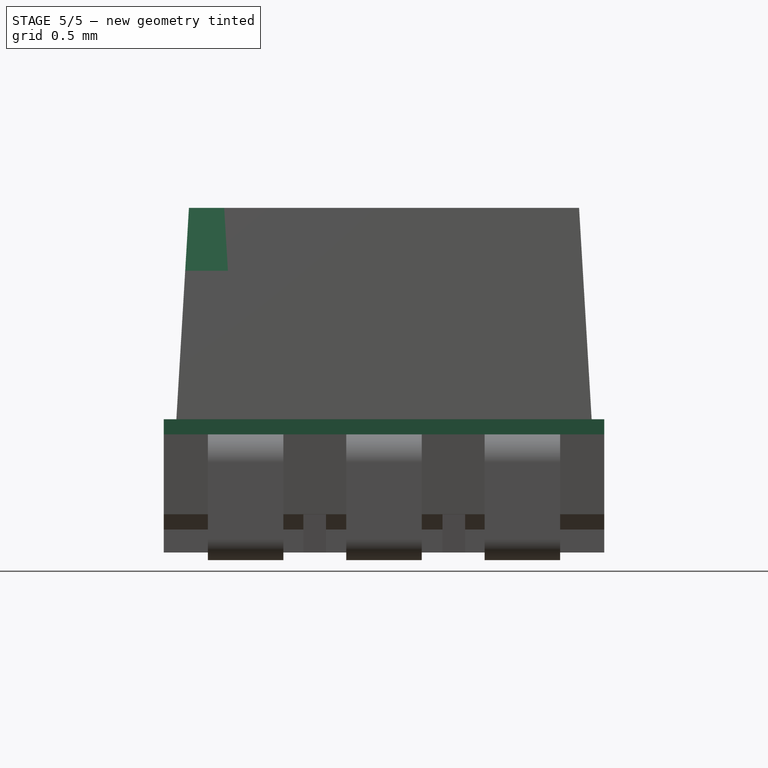
[diagram: stage 5 of 5 — right view after this stage's code; geometry added in this stage tinted green]
FEATURE [Sketcher::SketchObject] Sketch002
  Placement = pos=(0,-0.03,2.3) rot=(0,0,1;0rad)
  sketch-geometry (3):
    g0: LineSegment StartX=3.19 StartY=0.2 StartZ=0 EndX=3.6 EndY=0.2 EndZ=0
    g1: LineSegment StartX=3.6 StartY=0.2 StartZ=0 EndX=3.6 EndY=0.61 EndZ=0
    g2: LineSegment StartX=3.6 StartY=0.61 StartZ=0 EndX=3.19 EndY=0.2 EndZ=0
  constraints (9):
    c: Coincident(g0,g2)
    c: Coincident(g1,g2)
    c: Coincident(g0,g1)
    c: Vertical(g1)
    c: Horizontal(g0)
    c: DistanceX(g0) = 3.19
    c: DistanceX(g0) = 3.6
    c: DistanceY(g0) = 0.2
    c: Angle(g2) = -2.35619
FEATURE [PartDesign::Pad] Pad002
  Length = 0.5
  Length2 = 100
  Placement = pos=(0,-0.03,2.3) rot=(0,0,1;0rad)
  Sketch = -> Sketch002
  Type = 0
FEATURE [Part::Cut] Cut
  Base = -> Wedge001
  Tool = -> Pad002
FEATURE [Part::Box] Box  label="Cube"
  Height = 0.12
  Length = 3.7
  Placement = pos=(0,0,1) rot=(0,0,1;0rad)
  Width = 3.5
FEATURE [Part::Cut] Cut001
  Base = -> Cut
  Tool = -> Fillet
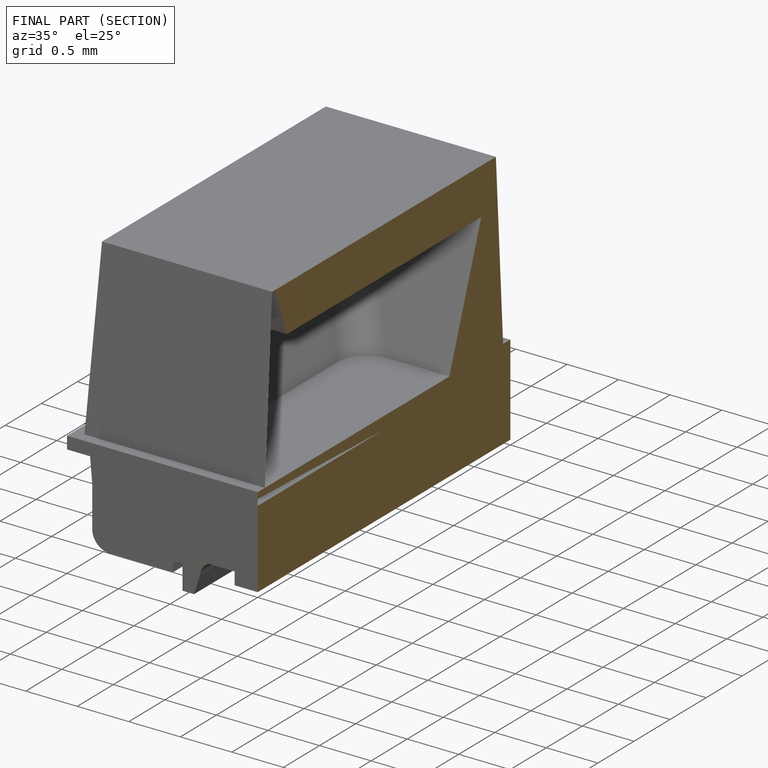
[diagram: finished part — half-section view (interior)]
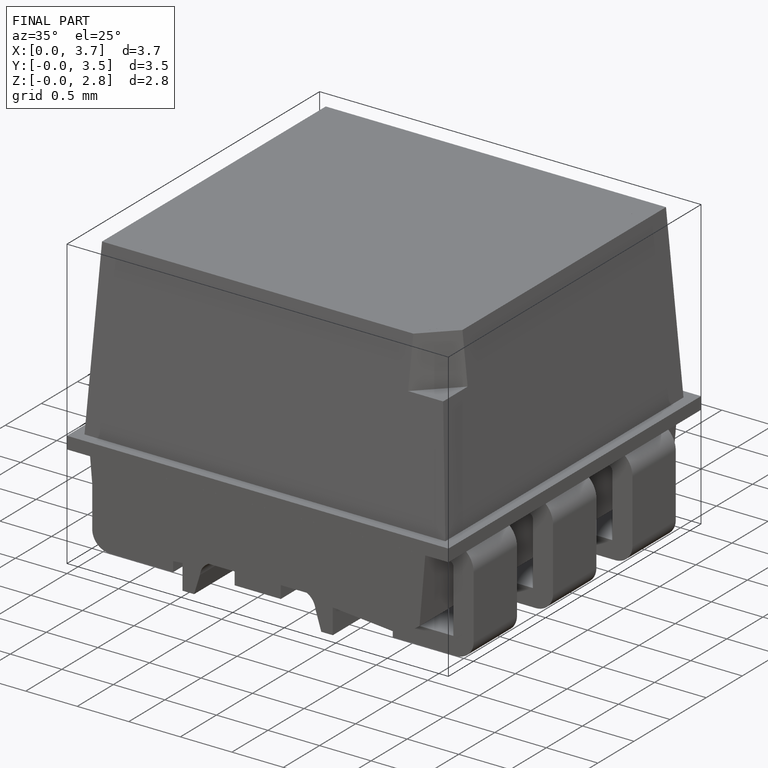
[diagram: finished part — iso view with bounding-box wireframe]
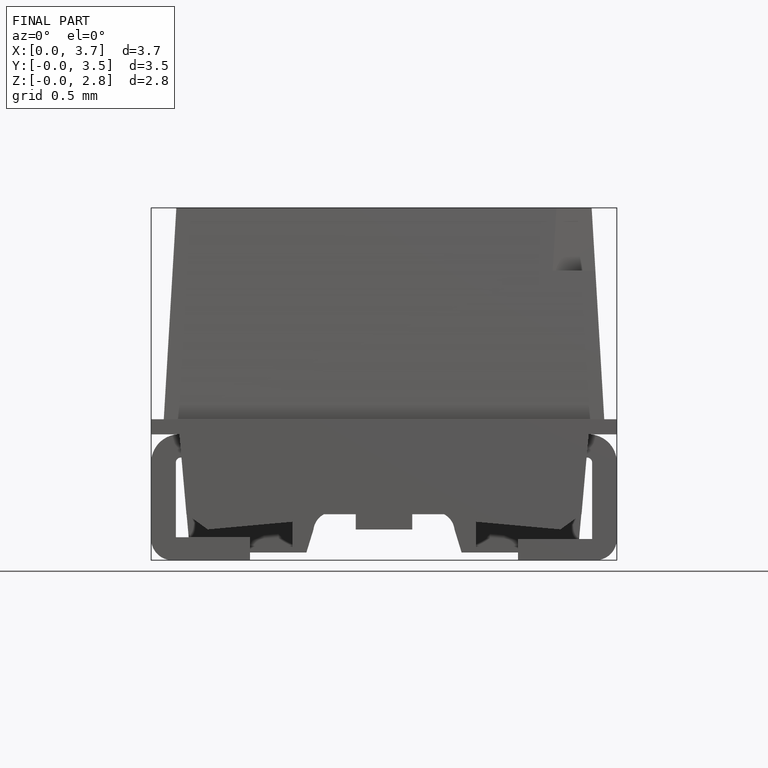
[diagram: finished part — front view with bounding-box wireframe]
